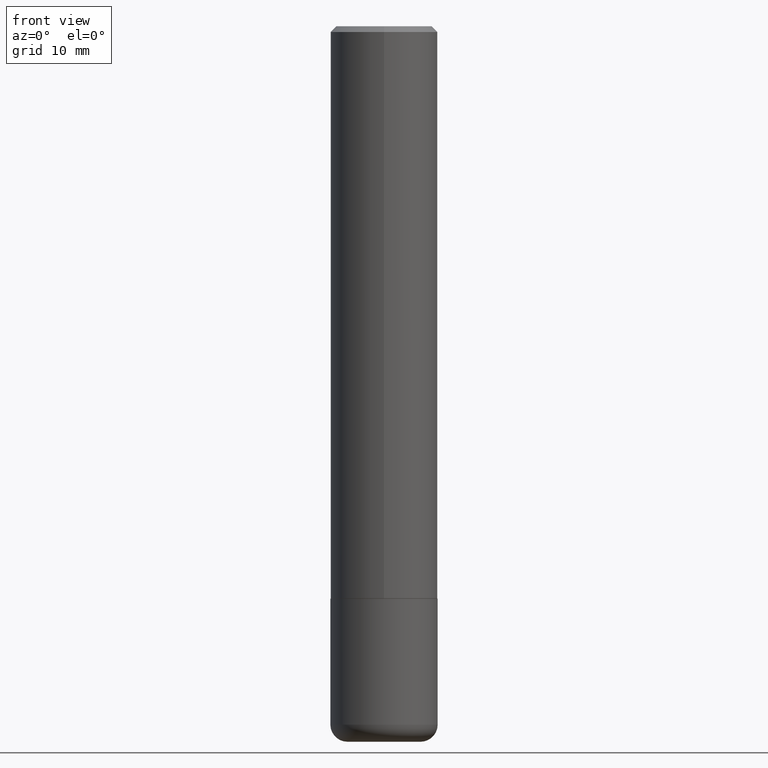
[diagram: clean part render]
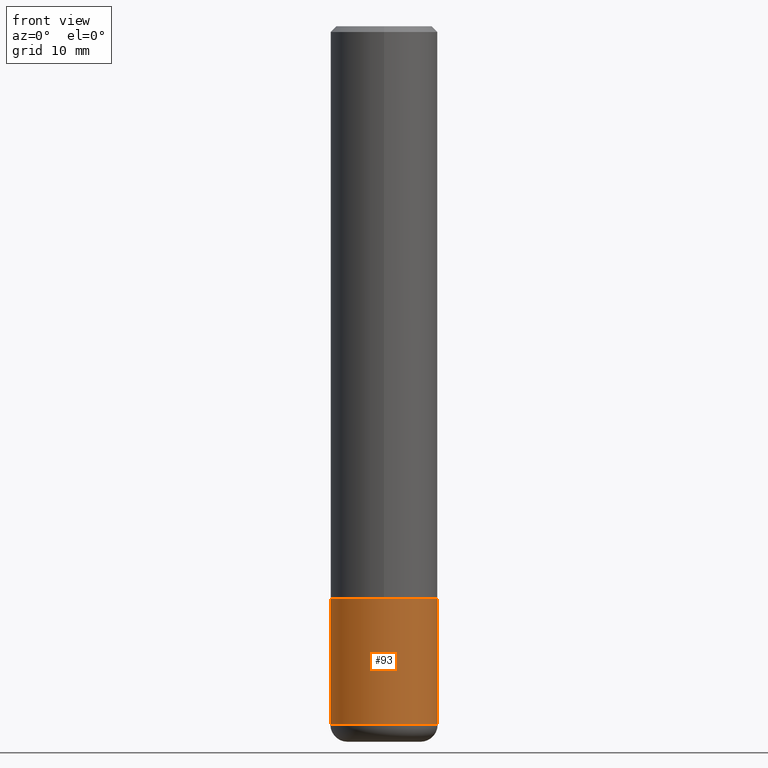
[diagram: same view with one face highlighted and labeled with its STEP entity id]
A machine part, front view. The second image highlights one B-rep face of the part: STEP entity #93.
In plain terms, the highlighted cylindrical surface (partial cylindrical patch) has radius 4.7625 mm, axis along (-0, 0, 1).
Its self-contained STEP definition (entity closure, byte-faithful):
#7 = DIRECTION ( 'NONE',  ( 1.000000000000000000, -6.982962677686265922E-15, 4.876176775795935793E-29 ) ) ;
#51 = DIRECTION ( 'NONE',  ( -2.445468806185136877E-29, 3.491481338843145188E-15, 1.000000000000000000 ) ) ;
#54 = EDGE_CURVE ( 'NONE', #318, #125, #317, .T. ) ;
#55 = EDGE_LOOP ( 'NONE', ( #80, #110, #311, #248 ) ) ;
#71 = AXIS2_PLACEMENT_3D ( 'NONE', #360, #325, #87 ) ;
#80 = ORIENTED_EDGE ( 'NONE', *, *, #198, .F. ) ;
#87 = DIRECTION ( 'NONE',  ( 1.000000000000000000, -6.982962677686266711E-15, 0.000000000000000000 ) ) ;
#89 = VERTEX_POINT ( 'NONE', #226 ) ;
#93 = ADVANCED_FACE ( 'NONE', ( #164 ), #204, .T. ) ;
#94 = DIRECTION ( 'NONE',  ( 1.000000000000000000, -6.982962677686260400E-15, 0.000000000000000000 ) ) ;
#110 = ORIENTED_EDGE ( 'NONE', *, *, #384, .T. ) ;
#118 = CARTESIAN_POINT ( 'NONE',  ( 0.1875000000000000555, -1.309305502066175205E-15, 9.142831454617382414E-30 ) ) ;
#121 = LINE ( 'NONE', #188, #127 ) ;
#125 = VERTEX_POINT ( 'NONE', #140 ) ;
#127 = VECTOR ( 'NONE', #51, 39.37007874015748143 ) ;
#140 = CARTESIAN_POINT ( 'NONE',  ( 0.1875000000000000278, -8.292268179752466962E-15, -2.000000000000000000 ) ) ;
#164 = FACE_OUTER_BOUND ( 'NONE', #55, .T. ) ;
#170 = DIRECTION ( 'NONE',  ( -2.445468806185136877E-29, 3.491481338843145188E-15, 1.000000000000000000 ) ) ;
#179 = AXIS2_PLACEMENT_3D ( 'NONE', #307, #410, #94 ) ;
#188 = CARTESIAN_POINT ( 'NONE',  ( -0.1875000000000000555, 1.332267629550188243E-15, -9.223003294227950793E-30 ) ) ;
#195 = CIRCLE ( 'NONE', #71, 0.1875000000000000278 ) ;
#198 = EDGE_CURVE ( 'NONE', #89, #381, #121, .T. ) ;
#204 = CYLINDRICAL_SURFACE ( 'NONE', #396, 0.1875000000000000555 ) ;
#226 = CARTESIAN_POINT ( 'NONE',  ( -0.1875000000000001388, -7.186946837227087200E-15, -2.440000000000000391 ) ) ;
#234 = CARTESIAN_POINT ( 'NONE',  ( 0.1875000000000001388, -9.828519968843450056E-15, -2.440000000000000391 ) ) ;
#247 = CARTESIAN_POINT ( 'NONE',  ( -0.1875000000000000278, -6.418820942681594864E-15, -2.000000000000000000 ) ) ;
#248 = ORIENTED_EDGE ( 'NONE', *, *, #324, .F. ) ;
#260 = CARTESIAN_POINT ( 'NONE',  ( 0.000000000000000000, 0.000000000000000000, 0.000000000000000000 ) ) ;
#276 = VECTOR ( 'NONE', #170, 39.37007874015748143 ) ;
#307 = CARTESIAN_POINT ( 'NONE',  ( 5.966943887091733341E-29, -8.519214466777275048E-15, -2.440000000000000391 ) ) ;
#311 = ORIENTED_EDGE ( 'NONE', *, *, #54, .T. ) ;
#317 = LINE ( 'NONE', #118, #276 ) ;
#318 = VERTEX_POINT ( 'NONE', #234 ) ;
#324 = EDGE_CURVE ( 'NONE', #381, #125, #195, .T. ) ;
#325 = DIRECTION ( 'NONE',  ( -2.445468806185136597E-29, 3.491481338843145583E-15, 1.000000000000000000 ) ) ;
#360 = CARTESIAN_POINT ( 'NONE',  ( 4.890937612370273194E-29, -6.982962677686291165E-15, -2.000000000000000000 ) ) ;
#381 = VERTEX_POINT ( 'NONE', #247 ) ;
#384 = EDGE_CURVE ( 'NONE', #89, #318, #414, .T. ) ;
#396 = AXIS2_PLACEMENT_3D ( 'NONE', #260, #398, #7 ) ;
#398 = DIRECTION ( 'NONE',  ( -2.445468806185136597E-29, 3.491481338843145583E-15, 1.000000000000000000 ) ) ;
#410 = DIRECTION ( 'NONE',  ( -2.445468806185136597E-29, 3.491481338843145583E-15, 1.000000000000000000 ) ) ;
#414 = CIRCLE ( 'NONE', #179, 0.1875000000000000555 ) ;